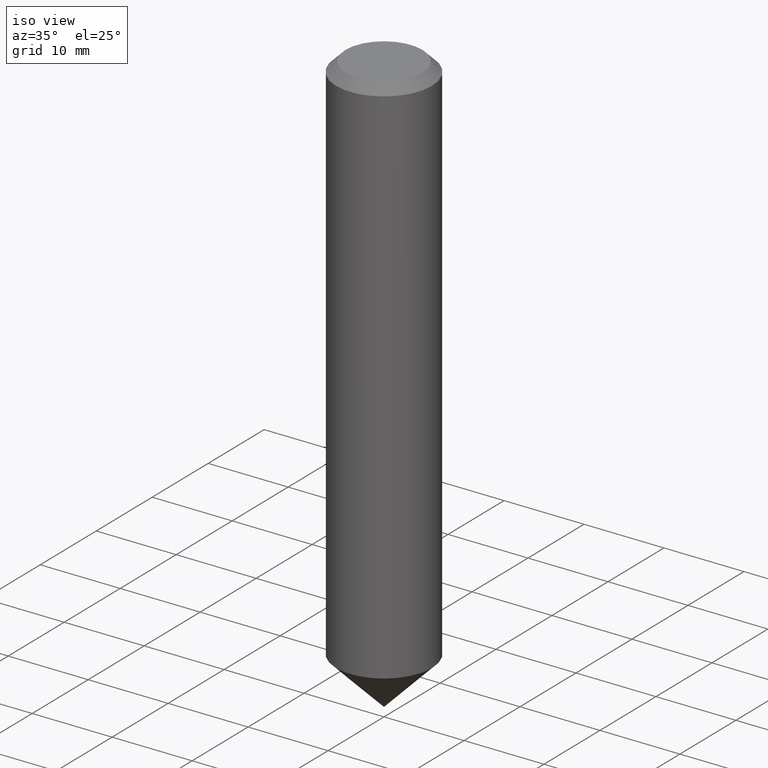
[diagram: clean part render]
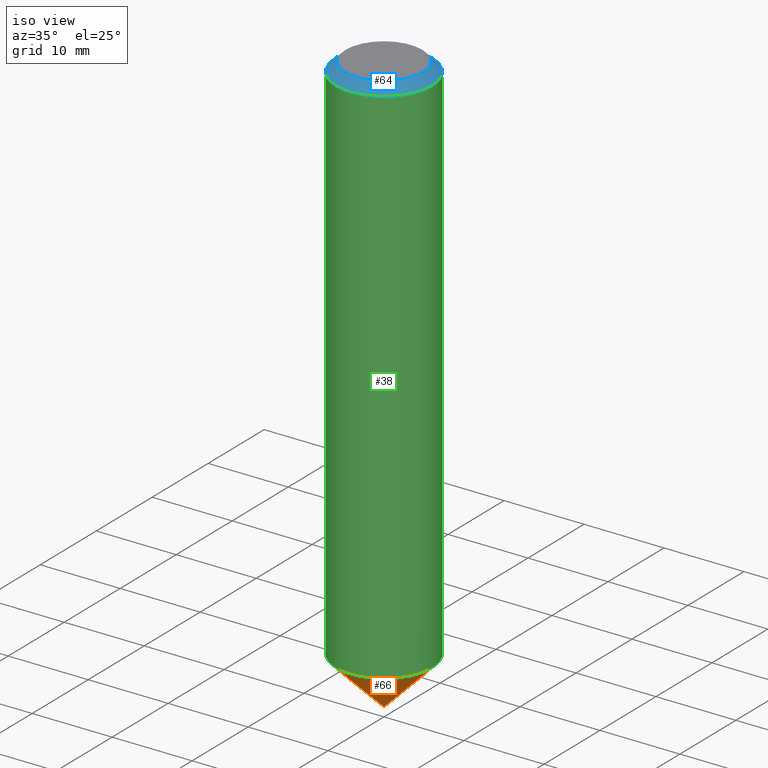
[diagram: same view with three faces highlighted in distinct colors, each labeled with its STEP entity id]
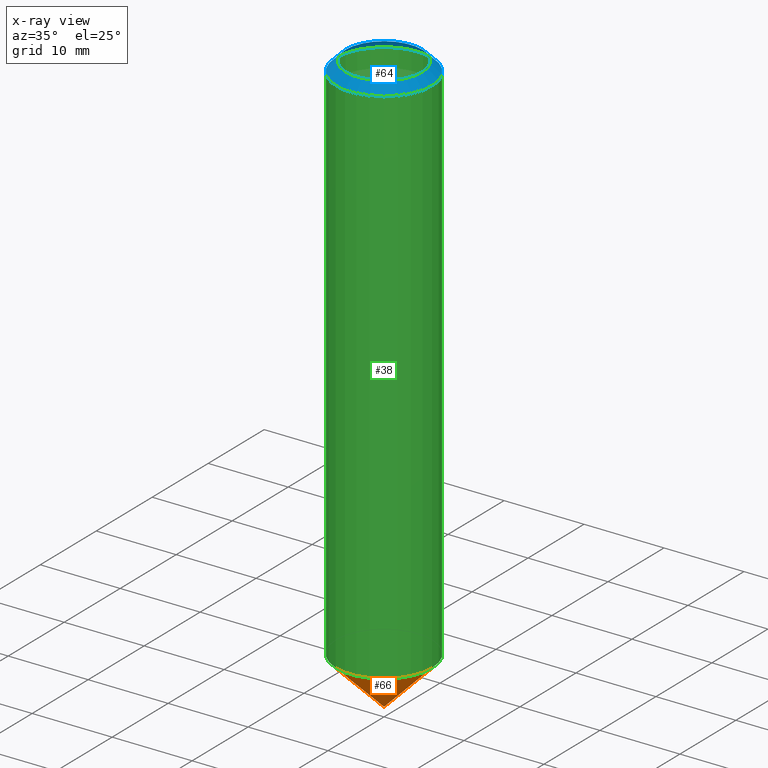
[diagram: x-ray of the same camera — body ghosted, the three highlighted faces saturated]
A machine part, iso view with three faces highlighted in distinct colors.
The next image is the same camera in x-ray (body ghosted, the three faces saturated) — at least one of them is partly hidden behind the body in this view.
Their STEP definitions:

[orange] entity #66 — the highlighted conical surface has half-angle 45 deg.
#1 = CONICAL_SURFACE ( 'NONE', #84, 1000.000000000004206, 0.7853981633974503884 ) ;
#6 = EDGE_CURVE ( 'NONE', #106, #106, #51, .T. ) ;
#41 = CARTESIAN_POINT ( 'NONE',  ( 5.999999999999531042, 0.0000000000000000000, -67.00000000000005684 ) ) ;
#51 = CIRCLE ( 'NONE', #60, 5.999999999999998224 ) ;
#53 = DIRECTION ( 'NONE',  ( 1.000000000000000000, 0.0000000000000000000, -6.994405055138457017E-15 ) ) ;
#60 = AXIS2_PLACEMENT_3D ( 'NONE', #94, #81, #71 ) ;
#66 = ADVANCED_FACE ( 'NONE', ( #177 ), #1, .T. ) ;
#71 = DIRECTION ( 'NONE',  ( 1.000000000000000000, 0.0000000000000000000, -6.938893903907230744E-15 ) ) ;
#81 = DIRECTION ( 'NONE',  ( -6.982962677686266711E-15, -0.0000000000000000000, -1.000000000000000000 ) ) ;
#83 = ORIENTED_EDGE ( 'NONE', *, *, #6, .T. ) ;
#84 = AXIS2_PLACEMENT_3D ( 'NONE', #133, #118, #53 ) ;
#92 = EDGE_LOOP ( 'NONE', ( #83 ) ) ;
#94 = CARTESIAN_POINT ( 'NONE',  ( -4.678584994049799958E-13, 0.0000000000000000000, -67.00000000000001421 ) ) ;
#106 = VERTEX_POINT ( 'NONE', #41 ) ;
#118 = DIRECTION ( 'NONE',  ( 6.982962677686266711E-15, 0.0000000000000000000, 1.000000000000000000 ) ) ;
#133 = CARTESIAN_POINT ( 'NONE',  ( 6.473206402215169468E-12, 0.0000000000000000000, 927.0000000000000000 ) ) ;
#177 = FACE_OUTER_BOUND ( 'NONE', #92, .T. ) ;

[blue] entity #64 — the highlighted conical surface has half-angle 45 deg.
#7 = DIRECTION ( 'NONE',  ( -1.000000000000000000, 0.0000000000000000000, 6.982962677686266711E-15 ) ) ;
#11 = CARTESIAN_POINT ( 'NONE',  ( -8.379555213223567384E-15, 0.0000000000000000000, -1.200000000000006617 ) ) ;
#29 = ORIENTED_EDGE ( 'NONE', *, *, #122, .T. ) ;
#32 = CARTESIAN_POINT ( 'NONE',  ( -6.000000000000008882, 0.0000000000000000000, -1.199999999999964873 ) ) ;
#36 = CIRCLE ( 'NONE', #131, 6.000000000000000000 ) ;
#55 = CIRCLE ( 'NONE', #175, 4.799999999999996270 ) ;
#59 = CARTESIAN_POINT ( 'NONE',  ( 0.0000000000000000000, 0.0000000000000000000, 0.0000000000000000000 ) ) ;
#64 = ADVANCED_FACE ( 'NONE', ( #125, #182 ), #144, .T. ) ;
#70 = VERTEX_POINT ( 'NONE', #135 ) ;
#74 = EDGE_LOOP ( 'NONE', ( #29 ) ) ;
#79 = DIRECTION ( 'NONE',  ( -6.982962677686266711E-15, 0.0000000000000000000, -1.000000000000000000 ) ) ;
#91 = DIRECTION ( 'NONE',  ( -6.982962677686266711E-15, 0.0000000000000000000, -1.000000000000000000 ) ) ;
#98 = DIRECTION ( 'NONE',  ( -1.000000000000000000, 0.0000000000000000000, 6.982962677686266711E-15 ) ) ;
#99 = DIRECTION ( 'NONE',  ( -6.982962677686266711E-15, 0.0000000000000000000, -1.000000000000000000 ) ) ;
#115 = EDGE_CURVE ( 'NONE', #127, #127, #36, .T. ) ;
#122 = EDGE_CURVE ( 'NONE', #70, #70, #55, .T. ) ;
#125 = FACE_OUTER_BOUND ( 'NONE', #150, .T. ) ;
#127 = VERTEX_POINT ( 'NONE', #32 ) ;
#131 = AXIS2_PLACEMENT_3D ( 'NONE', #11, #91, #138 ) ;
#135 = CARTESIAN_POINT ( 'NONE',  ( -4.799999999999996270, 0.0000000000000000000, 3.351822085289405497E-14 ) ) ;
#138 = DIRECTION ( 'NONE',  ( -1.000000000000000000, 0.0000000000000000000, 6.975033976323412122E-15 ) ) ;
#141 = CARTESIAN_POINT ( 'NONE',  ( 0.0000000000000000000, 0.0000000000000000000, 0.0000000000000000000 ) ) ;
#144 = CONICAL_SURFACE ( 'NONE', #159, 4.799999999999996270, 0.7853981633974472798 ) ;
#150 = EDGE_LOOP ( 'NONE', ( #171 ) ) ;
#159 = AXIS2_PLACEMENT_3D ( 'NONE', #59, #79, #7 ) ;
#171 = ORIENTED_EDGE ( 'NONE', *, *, #115, .F. ) ;
#175 = AXIS2_PLACEMENT_3D ( 'NONE', #141, #99, #98 ) ;
#182 = FACE_BOUND ( 'NONE', #74, .T. ) ;

[green] entity #38 — the highlighted cylindrical surface (bore or boss wall) has radius 6 mm, axis along (-0, 0, -1).
#11 = CARTESIAN_POINT ( 'NONE',  ( -8.379555213223567384E-15, 0.0000000000000000000, -1.200000000000006617 ) ) ;
#17 = ORIENTED_EDGE ( 'NONE', *, *, #115, .T. ) ;
#20 = CYLINDRICAL_SURFACE ( 'NONE', #102, 5.999999999999998224 ) ;
#32 = CARTESIAN_POINT ( 'NONE',  ( -6.000000000000008882, 0.0000000000000000000, -1.199999999999964873 ) ) ;
#33 = CARTESIAN_POINT ( 'NONE',  ( -5.097562754710974446E-13, 0.0000000000000000000, -73.00000000000000000 ) ) ;
#36 = CIRCLE ( 'NONE', #131, 6.000000000000000000 ) ;
#38 = ADVANCED_FACE ( 'NONE', ( #157, #147 ), #20, .T. ) ;
#43 = DIRECTION ( 'NONE',  ( -6.982962677686266711E-15, -0.0000000000000000000, -1.000000000000000000 ) ) ;
#56 = CARTESIAN_POINT ( 'NONE',  ( -4.678584994049799958E-13, 0.0000000000000000000, -67.00000000000001421 ) ) ;
#68 = CARTESIAN_POINT ( 'NONE',  ( 5.999999999999531042, 0.0000000000000000000, -67.00000000000005684 ) ) ;
#69 = DIRECTION ( 'NONE',  ( -1.000000000000000000, 0.0000000000000000000, 6.938893903907230744E-15 ) ) ;
#88 = EDGE_CURVE ( 'NONE', #166, #166, #161, .T. ) ;
#91 = DIRECTION ( 'NONE',  ( -6.982962677686266711E-15, 0.0000000000000000000, -1.000000000000000000 ) ) ;
#96 = EDGE_LOOP ( 'NONE', ( #17 ) ) ;
#102 = AXIS2_PLACEMENT_3D ( 'NONE', #33, #130, #69 ) ;
#113 = AXIS2_PLACEMENT_3D ( 'NONE', #56, #43, #124 ) ;
#115 = EDGE_CURVE ( 'NONE', #127, #127, #36, .T. ) ;
#124 = DIRECTION ( 'NONE',  ( 1.000000000000000000, 0.0000000000000000000, -6.938893903907230744E-15 ) ) ;
#127 = VERTEX_POINT ( 'NONE', #32 ) ;
#130 = DIRECTION ( 'NONE',  ( -6.982962677686266711E-15, 0.0000000000000000000, -1.000000000000000000 ) ) ;
#131 = AXIS2_PLACEMENT_3D ( 'NONE', #11, #91, #138 ) ;
#138 = DIRECTION ( 'NONE',  ( -1.000000000000000000, 0.0000000000000000000, 6.975033976323412122E-15 ) ) ;
#139 = ORIENTED_EDGE ( 'NONE', *, *, #88, .F. ) ;
#145 = EDGE_LOOP ( 'NONE', ( #139 ) ) ;
#147 = FACE_OUTER_BOUND ( 'NONE', #145, .T. ) ;
#157 = FACE_OUTER_BOUND ( 'NONE', #96, .T. ) ;
#161 = CIRCLE ( 'NONE', #113, 5.999999999999998224 ) ;
#166 = VERTEX_POINT ( 'NONE', #68 ) ;